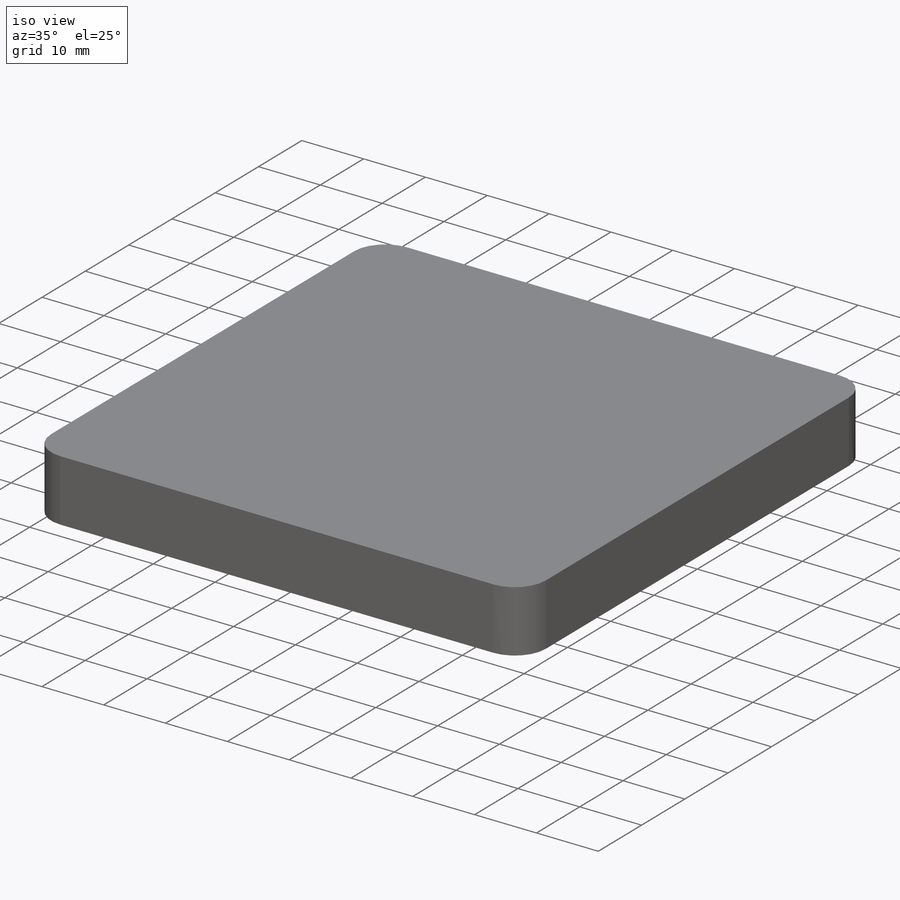
[diagram: iso view]
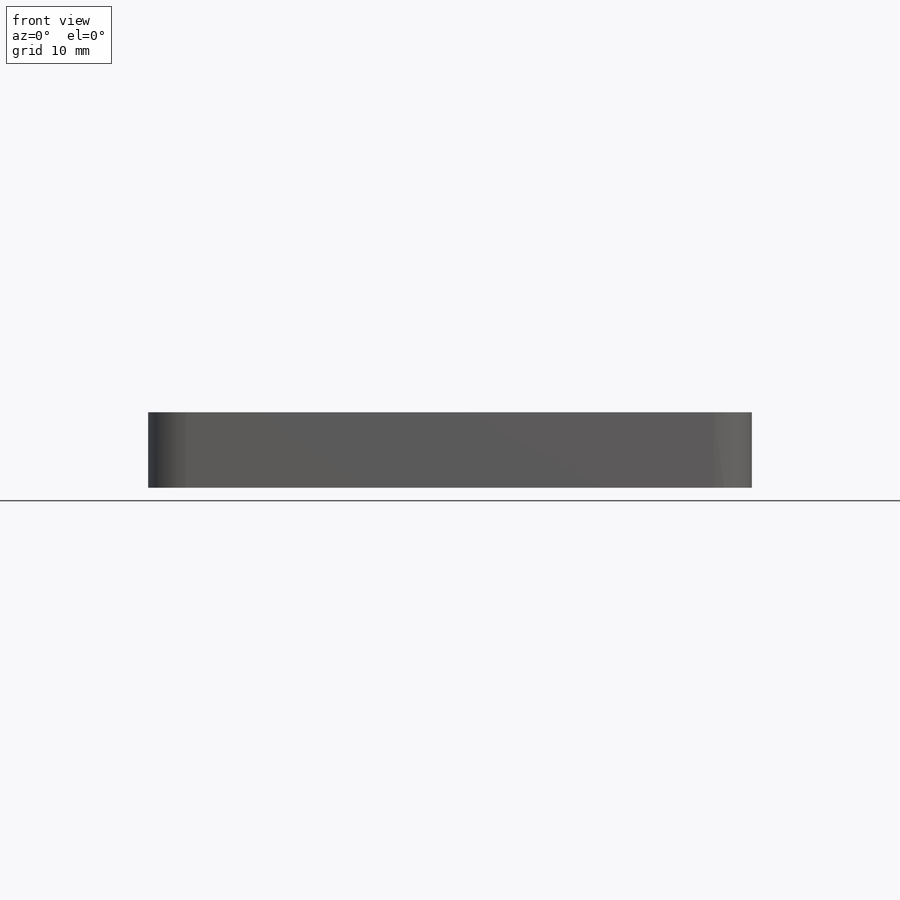
[diagram: front view]
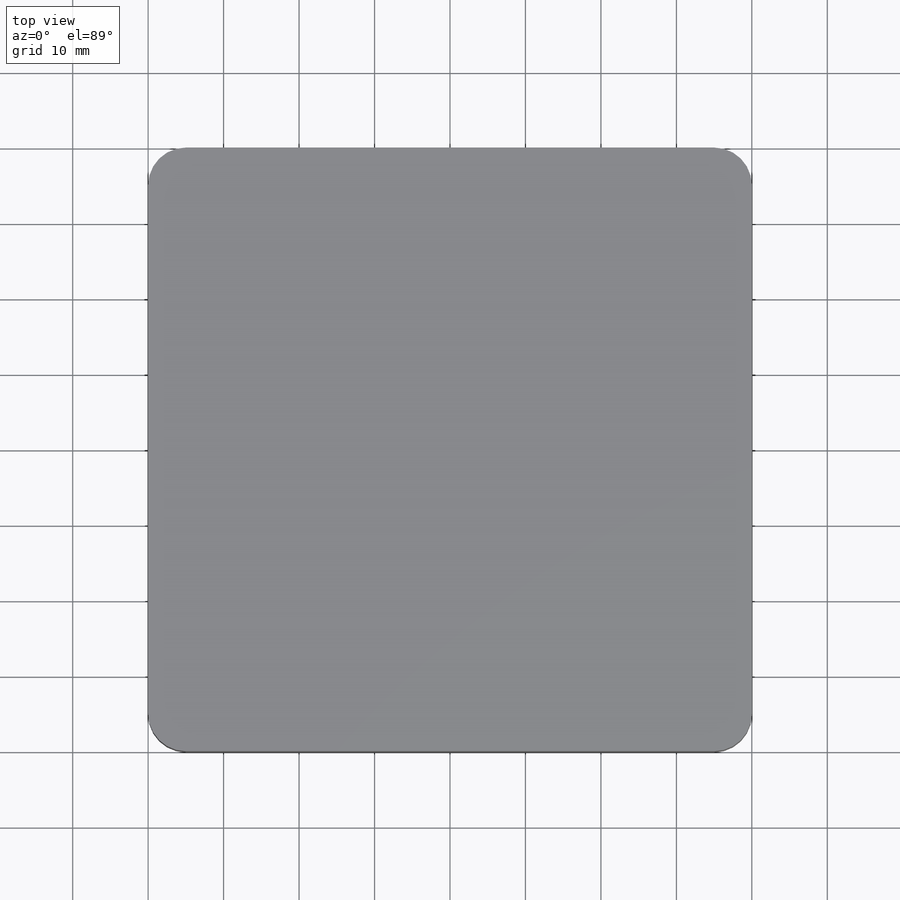
[diagram: top view]
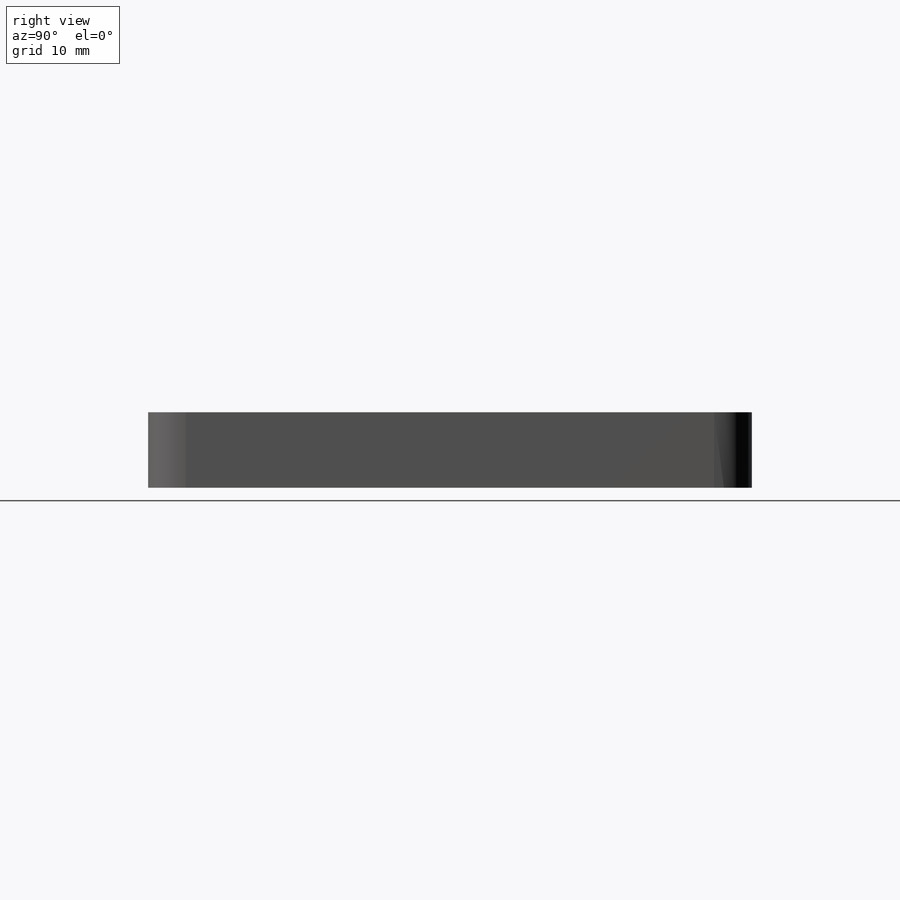
[diagram: right view]
SOLIDWORKS PART (.sldprt)
format: sldprt  version: not decoded by parser v0  size: 268,800 bytes
history: native  units: mm
features: plane x3, sketch x3, cut_extrude x2, chamfer x2, material x1, extrude x1, fillet x1 (+12 scaffold rows collapsed)
feature tree (25):
  scaffold x12  (default folders/planes/origin — collapsed)
  material  "Matériau <non spécifié>"
  plane  "Plan de face"
  plane  "Plan de dessus"
  plane  "Plan de droite"
  sketch  "Esquisse1"  dims[D1=80.0mm D2=80.0mm]
  extrude  "Extrusion1"  Depth=10mm
  sketch  "Esquisse2"  dims[D1=11.0mm D2=44.0mm D3=11.5mm D4=34.5mm]
  cut_extrude  "Enlèv. mat.-Extru.1"  Depth=8mm
  chamfer  "Chanfrein1"  Distance=8mm Angle=45deg
  chamfer  "Chanfrein2"  Distance=8mm Angle=45deg
  fillet  "Congé1"  Radius=5mm
  sketch  "Esquisse3"  dims[D1=5.0mm D2=5.0mm D3=31.0mm D4=37.5mm]
  cut_extrude  "Enlèv. mat.-Extru.2"  Depth=5mm
decode coverage: 9 of 9 modeling features carry decoded parameters
note: suppression state not decoded; provenance and decode notes live in map.json
